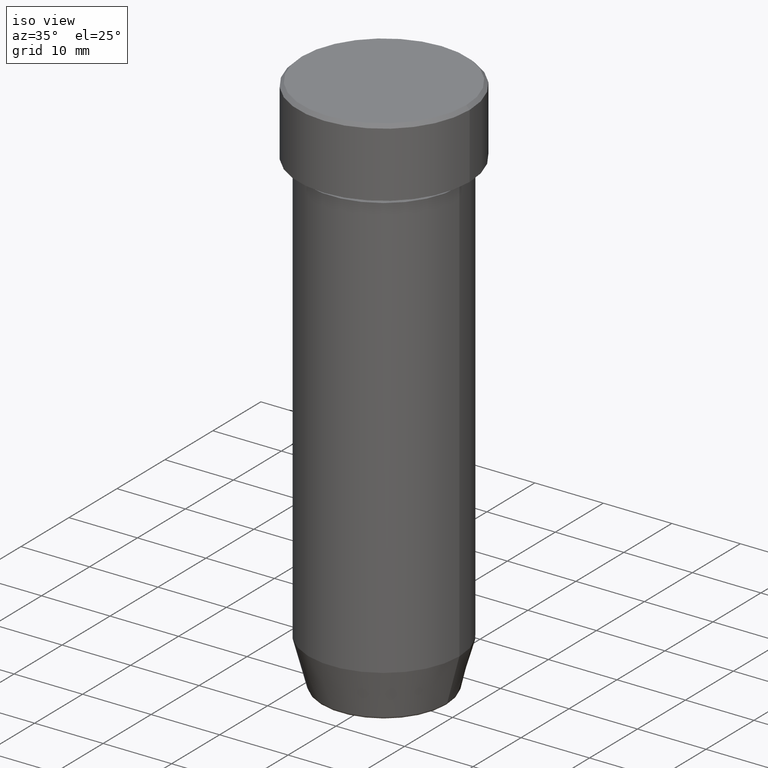
[diagram: clean part render]
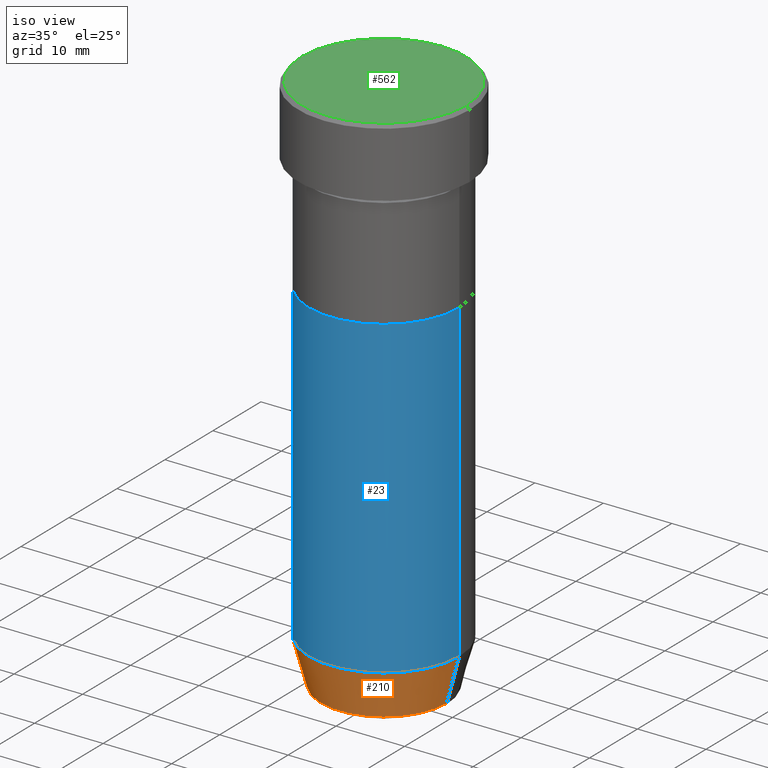
[diagram: same view with three faces highlighted in distinct colors, each labeled with its STEP entity id]
A machine part, iso view with three faces highlighted in distinct colors.
Their STEP definitions:

[orange] entity #210 — the highlighted conical surface has half-angle 15 deg.
#1 = EDGE_LOOP ( 'NONE', ( #567, #559, #313, #192 ) ) ;
#43 = CARTESIAN_POINT ( 'NONE',  ( -9.223655072137194821, 1.238341722557647399E-15, -79.62940952255127058 ) ) ;
#50 = CARTESIAN_POINT ( 'NONE',  ( 11.00000000000000000, 0.000000000000000000, -73.00000000000000000 ) ) ;
#54 = VECTOR ( 'NONE', #555, 1000.000000000000114 ) ;
#85 = LINE ( 'NONE', #380, #276 ) ;
#87 = DIRECTION ( 'NONE',  ( -1.000000000000000000, 0.000000000000000000, 0.000000000000000000 ) ) ;
#104 = EDGE_CURVE ( 'NONE', #459, #546, #194, .T. ) ;
#125 = DIRECTION ( 'NONE',  ( -0.000000000000000000, -0.000000000000000000, 1.000000000000000000 ) ) ;
#151 = AXIS2_PLACEMENT_3D ( 'NONE', #406, #125, #87 ) ;
#179 = DIRECTION ( 'NONE',  ( 1.000000000000000000, 0.000000000000000000, 0.000000000000000000 ) ) ;
#187 = CARTESIAN_POINT ( 'NONE',  ( 9.223655072137194821, 0.000000000000000000, -79.62940952255127058 ) ) ;
#192 = ORIENTED_EDGE ( 'NONE', *, *, #489, .F. ) ;
#194 = LINE ( 'NONE', #280, #54 ) ;
#196 = AXIS2_PLACEMENT_3D ( 'NONE', #533, #316, #179 ) ;
#210 = ADVANCED_FACE ( 'NONE', ( #580 ), #490, .T. ) ;
#233 = DIRECTION ( 'NONE',  ( 1.000000000000000000, 0.000000000000000000, 0.000000000000000000 ) ) ;
#248 = EDGE_CURVE ( 'NONE', #549, #459, #444, .T. ) ;
#276 = VECTOR ( 'NONE', #369, 1000.000000000000114 ) ;
#280 = CARTESIAN_POINT ( 'NONE',  ( 9.124355652982140796, 0.000000000000000000, -80.00000000000000000 ) ) ;
#306 = VERTEX_POINT ( 'NONE', #433 ) ;
#313 = ORIENTED_EDGE ( 'NONE', *, *, #104, .T. ) ;
#315 = DIRECTION ( 'NONE',  ( -0.000000000000000000, -0.000000000000000000, 1.000000000000000000 ) ) ;
#316 = DIRECTION ( 'NONE',  ( -0.000000000000000000, -0.000000000000000000, 1.000000000000000000 ) ) ;
#369 = DIRECTION ( 'NONE',  ( -0.2588190451025205174, 3.169619151431761243E-17, 0.9659258262890684232 ) ) ;
#380 = CARTESIAN_POINT ( 'NONE',  ( -9.124355652982140796, 1.117411294470663595E-15, -80.00000000000000000 ) ) ;
#406 = CARTESIAN_POINT ( 'NONE',  ( 0.000000000000000000, 0.000000000000000000, -79.62940952255127058 ) ) ;
#433 = CARTESIAN_POINT ( 'NONE',  ( -11.00000000000000000, 1.347111479062088405E-15, -73.00000000000000000 ) ) ;
#444 = CIRCLE ( 'NONE', #151, 9.223655072137194821 ) ;
#459 = VERTEX_POINT ( 'NONE', #187 ) ;
#487 = AXIS2_PLACEMENT_3D ( 'NONE', #499, #315, #233 ) ;
#488 = EDGE_CURVE ( 'NONE', #549, #306, #85, .T. ) ;
#489 = EDGE_CURVE ( 'NONE', #306, #546, #574, .T. ) ;
#490 = CONICAL_SURFACE ( 'NONE', #196, 9.124355652982140796, 0.2617993877991491303 ) ;
#499 = CARTESIAN_POINT ( 'NONE',  ( 0.000000000000000000, 0.000000000000000000, -73.00000000000000000 ) ) ;
#533 = CARTESIAN_POINT ( 'NONE',  ( 0.000000000000000000, 0.000000000000000000, -80.00000000000000000 ) ) ;
#546 = VERTEX_POINT ( 'NONE', #50 ) ;
#549 = VERTEX_POINT ( 'NONE', #43 ) ;
#555 = DIRECTION ( 'NONE',  ( 0.2588190451025205174, 0.000000000000000000, 0.9659258262890684232 ) ) ;
#559 = ORIENTED_EDGE ( 'NONE', *, *, #248, .T. ) ;
#567 = ORIENTED_EDGE ( 'NONE', *, *, #488, .F. ) ;
#574 = CIRCLE ( 'NONE', #487, 11.00000000000000000 ) ;
#580 = FACE_OUTER_BOUND ( 'NONE', #1, .T. ) ;

[blue] entity #23 — the highlighted cylindrical surface (partial cylindrical patch) has radius 11 mm, axis along (-0, -0, 1).
#13 = CARTESIAN_POINT ( 'NONE',  ( 0.000000000000000000, 0.000000000000000000, -27.00000000000000000 ) ) ;
#23 = ADVANCED_FACE ( 'NONE', ( #453 ), #223, .T. ) ;
#27 = CARTESIAN_POINT ( 'NONE',  ( -11.00000000000000000, 1.347111479062088405E-15, 0.000000000000000000 ) ) ;
#50 = CARTESIAN_POINT ( 'NONE',  ( 11.00000000000000000, 0.000000000000000000, -73.00000000000000000 ) ) ;
#58 = ORIENTED_EDGE ( 'NONE', *, *, #368, .T. ) ;
#62 = ORIENTED_EDGE ( 'NONE', *, *, #489, .T. ) ;
#64 = DIRECTION ( 'NONE',  ( -0.000000000000000000, -0.000000000000000000, 1.000000000000000000 ) ) ;
#73 = CIRCLE ( 'NONE', #205, 11.00000000000000000 ) ;
#105 = DIRECTION ( 'NONE',  ( -0.000000000000000000, -0.000000000000000000, 1.000000000000000000 ) ) ;
#106 = VECTOR ( 'NONE', #64, 1000.000000000000000 ) ;
#156 = CARTESIAN_POINT ( 'NONE',  ( 0.000000000000000000, 0.000000000000000000, 0.000000000000000000 ) ) ;
#158 = ORIENTED_EDGE ( 'NONE', *, *, #458, .F. ) ;
#175 = DIRECTION ( 'NONE',  ( 1.000000000000000000, 0.000000000000000000, 0.000000000000000000 ) ) ;
#185 = DIRECTION ( 'NONE',  ( -0.000000000000000000, -0.000000000000000000, 1.000000000000000000 ) ) ;
#205 = AXIS2_PLACEMENT_3D ( 'NONE', #13, #185, #322 ) ;
#223 = CYLINDRICAL_SURFACE ( 'NONE', #503, 11.00000000000000000 ) ;
#229 = CARTESIAN_POINT ( 'NONE',  ( -11.00000000000000000, 1.347111479062088405E-15, -27.00000000000000000 ) ) ;
#233 = DIRECTION ( 'NONE',  ( 1.000000000000000000, 0.000000000000000000, 0.000000000000000000 ) ) ;
#241 = EDGE_LOOP ( 'NONE', ( #293, #62, #58, #158 ) ) ;
#293 = ORIENTED_EDGE ( 'NONE', *, *, #348, .F. ) ;
#306 = VERTEX_POINT ( 'NONE', #433 ) ;
#315 = DIRECTION ( 'NONE',  ( -0.000000000000000000, -0.000000000000000000, 1.000000000000000000 ) ) ;
#322 = DIRECTION ( 'NONE',  ( 1.000000000000000000, 0.000000000000000000, 0.000000000000000000 ) ) ;
#329 = VERTEX_POINT ( 'NONE', #575 ) ;
#341 = CARTESIAN_POINT ( 'NONE',  ( 11.00000000000000000, 0.000000000000000000, 0.000000000000000000 ) ) ;
#348 = EDGE_CURVE ( 'NONE', #306, #387, #391, .T. ) ;
#368 = EDGE_CURVE ( 'NONE', #546, #329, #389, .T. ) ;
#387 = VERTEX_POINT ( 'NONE', #229 ) ;
#389 = LINE ( 'NONE', #341, #441 ) ;
#391 = LINE ( 'NONE', #27, #106 ) ;
#410 = DIRECTION ( 'NONE',  ( -0.000000000000000000, -0.000000000000000000, 1.000000000000000000 ) ) ;
#433 = CARTESIAN_POINT ( 'NONE',  ( -11.00000000000000000, 1.347111479062088405E-15, -73.00000000000000000 ) ) ;
#441 = VECTOR ( 'NONE', #105, 1000.000000000000000 ) ;
#453 = FACE_OUTER_BOUND ( 'NONE', #241, .T. ) ;
#458 = EDGE_CURVE ( 'NONE', #387, #329, #73, .T. ) ;
#487 = AXIS2_PLACEMENT_3D ( 'NONE', #499, #315, #233 ) ;
#489 = EDGE_CURVE ( 'NONE', #306, #546, #574, .T. ) ;
#499 = CARTESIAN_POINT ( 'NONE',  ( 0.000000000000000000, 0.000000000000000000, -73.00000000000000000 ) ) ;
#503 = AXIS2_PLACEMENT_3D ( 'NONE', #156, #410, #175 ) ;
#546 = VERTEX_POINT ( 'NONE', #50 ) ;
#574 = CIRCLE ( 'NONE', #487, 11.00000000000000000 ) ;
#575 = CARTESIAN_POINT ( 'NONE',  ( 11.00000000000000000, 0.000000000000000000, -27.00000000000000000 ) ) ;

[green] entity #562 — the highlighted planar face has unit normal (0, -0, 1).
#41 = CIRCLE ( 'NONE', #237, 12.00000000000000355 ) ;
#47 = ORIENTED_EDGE ( 'NONE', *, *, #256, .T. ) ;
#55 = VERTEX_POINT ( 'NONE', #117 ) ;
#81 = DIRECTION ( 'NONE',  ( 0.000000000000000000, -0.000000000000000000, 1.000000000000000000 ) ) ;
#84 = DIRECTION ( 'NONE',  ( -0.000000000000000000, -0.000000000000000000, 1.000000000000000000 ) ) ;
#86 = EDGE_CURVE ( 'NONE', #277, #55, #98, .T. ) ;
#98 = CIRCLE ( 'NONE', #558, 12.00000000000000355 ) ;
#117 = CARTESIAN_POINT ( 'NONE',  ( -12.00000000000000355, 0.000000000000000000, 0.000000000000000000 ) ) ;
#123 = DIRECTION ( 'NONE',  ( 1.000000000000000000, 0.000000000000000000, 0.000000000000000000 ) ) ;
#124 = PLANE ( 'NONE',  #429 ) ;
#176 = FACE_OUTER_BOUND ( 'NONE', #422, .T. ) ;
#182 = DIRECTION ( 'NONE',  ( 1.000000000000000000, 0.000000000000000000, 0.000000000000000000 ) ) ;
#237 = AXIS2_PLACEMENT_3D ( 'NONE', #593, #545, #123 ) ;
#256 = EDGE_CURVE ( 'NONE', #55, #277, #41, .T. ) ;
#269 = ORIENTED_EDGE ( 'NONE', *, *, #86, .T. ) ;
#277 = VERTEX_POINT ( 'NONE', #529 ) ;
#420 = DIRECTION ( 'NONE',  ( 1.000000000000000000, 0.000000000000000000, 0.000000000000000000 ) ) ;
#422 = EDGE_LOOP ( 'NONE', ( #47, #269 ) ) ;
#429 = AXIS2_PLACEMENT_3D ( 'NONE', #511, #81, #182 ) ;
#511 = CARTESIAN_POINT ( 'NONE',  ( 0.000000000000000000, 0.000000000000000000, 0.000000000000000000 ) ) ;
#529 = CARTESIAN_POINT ( 'NONE',  ( 12.00000000000000355, 1.500192328955507734E-15, 0.000000000000000000 ) ) ;
#542 = CARTESIAN_POINT ( 'NONE',  ( 0.000000000000000000, 0.000000000000000000, 0.000000000000000000 ) ) ;
#545 = DIRECTION ( 'NONE',  ( -0.000000000000000000, -0.000000000000000000, 1.000000000000000000 ) ) ;
#558 = AXIS2_PLACEMENT_3D ( 'NONE', #542, #84, #420 ) ;
#562 = ADVANCED_FACE ( 'NONE', ( #176 ), #124, .T. ) ;
#593 = CARTESIAN_POINT ( 'NONE',  ( 0.000000000000000000, 0.000000000000000000, 0.000000000000000000 ) ) ;